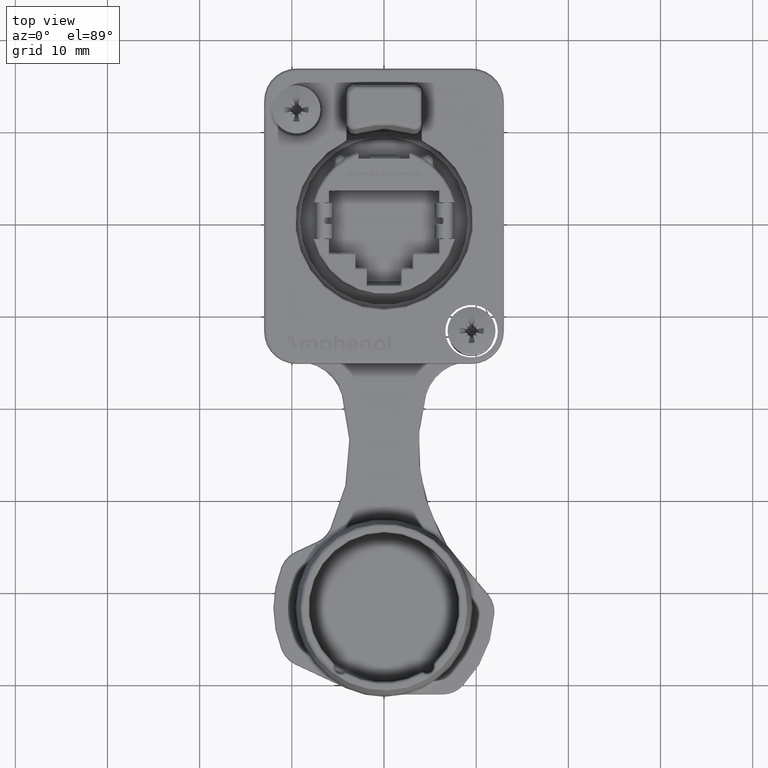
[diagram: clean part render]
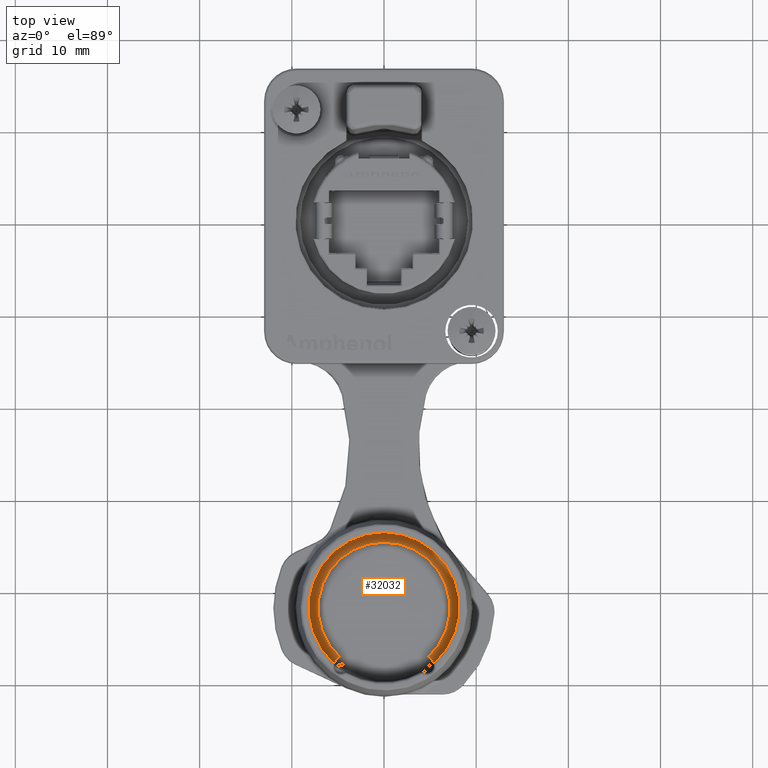
[diagram: same view with one face highlighted and labeled with its STEP entity id]
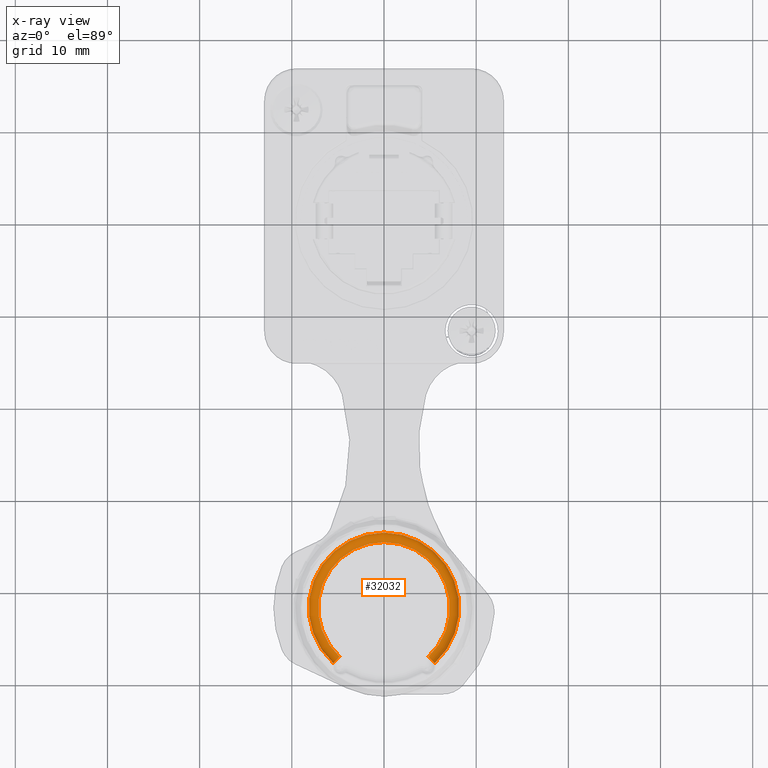
[diagram: x-ray of the same camera — body ghosted, the highlighted face saturated]
A machine part, top view. The second image highlights one B-rep face of the part: STEP entity #32032.
The next image is the same camera in x-ray: the body ghosted, the highlighted face saturated — about 0% of this face is hidden behind the body in this view.
In plain terms, the highlighted toroidal blend (fillet) surface has major radius 7.15 mm and minor (blend) radius 1 mm.
Its self-contained STEP definition (entity closure, byte-faithful):
#902=TOROIDAL_SURFACE('',#33985,7.15,1.);
#3028=FACE_OUTER_BOUND('',#4813,.T.);
#4813=EDGE_LOOP('',(#21995,#21996,#21997,#21998));
#12996=CIRCLE('',#33986,1.);
#12997=CIRCLE('',#33987,7.15);
#12998=CIRCLE('',#33988,1.);
#12999=CIRCLE('',#33989,8.15);
#14013=VERTEX_POINT('',#43654);
#14021=VERTEX_POINT('',#43815);
#14022=VERTEX_POINT('',#43817);
#14023=VERTEX_POINT('',#43819);
#17131=EDGE_CURVE('',#14013,#14021,#12996,.T.);
#17132=EDGE_CURVE('',#14021,#14022,#12997,.T.);
#17133=EDGE_CURVE('',#14022,#14023,#12998,.T.);
#17134=EDGE_CURVE('',#14023,#14013,#12999,.T.);
#21995=ORIENTED_EDGE('',*,*,#17131,.T.);
#21996=ORIENTED_EDGE('',*,*,#17132,.T.);
#21997=ORIENTED_EDGE('',*,*,#17133,.T.);
#21998=ORIENTED_EDGE('',*,*,#17134,.T.);
#32032=ADVANCED_FACE('',(#3028),#902,.F.);
#33985=AXIS2_PLACEMENT_3D('',#43814,#36461,#36462);
#33986=AXIS2_PLACEMENT_3D('',#43816,#36463,#36464);
#33987=AXIS2_PLACEMENT_3D('',#43818,#36465,#36466);
#33988=AXIS2_PLACEMENT_3D('',#43820,#36467,#36468);
#33989=AXIS2_PLACEMENT_3D('',#43821,#36469,#36470);
#36461=DIRECTION('center_axis',(1.03470426068351E-17,8.32667268468849E-17,
-1.));
#36462=DIRECTION('ref_axis',(8.81375475580763E-17,1.,1.08978947202469E-16));
#36463=DIRECTION('center_axis',(0.737774164008973,-0.675047615298996,-4.85752246825196E-17));
#36464=DIRECTION('ref_axis',(-0.675047615298996,-0.737774164008973,-6.84167862263651E-17));
#36465=DIRECTION('center_axis',(1.03470426068351E-17,8.32667268468849E-17,
-1.));
#36466=DIRECTION('ref_axis',(3.33066907387547E-16,1.,8.32667268468849E-17));
#36467=DIRECTION('center_axis',(-0.737774164008972,-0.675047615298996,-6.38427861009655E-17));
#36468=DIRECTION('ref_axis',(1.03470426068351E-17,8.32667268468849E-17,
-1.));
#36469=DIRECTION('center_axis',(-1.03470426068351E-17,-8.32667268468849E-17,
1.));
#36470=DIRECTION('ref_axis',(3.33066907387547E-16,1.,8.32667268468849E-17));
#43654=CARTESIAN_POINT('',(-5.50163806468683,-48.0128594366731,5.));
#43814=CARTESIAN_POINT('Origin',(-1.14595353373403E-14,-42.,5.));
#43815=CARTESIAN_POINT('',(-4.82659044938783,-47.2750852726642,4.));
#43816=CARTESIAN_POINT('Origin',(-4.82659044938783,-47.2750852726642,5.));
#43817=CARTESIAN_POINT('',(4.82659044938781,-47.2750852726642,4.));
#43818=CARTESIAN_POINT('Origin',(-1.14491882947334E-14,-42.,4.));
#43819=CARTESIAN_POINT('',(5.50163806468681,-48.0128594366731,5.));
#43820=CARTESIAN_POINT('Origin',(4.82659044938781,-47.2750852726642,5.));
#43821=CARTESIAN_POINT('Origin',(-1.14595353373403E-14,-42.,5.));